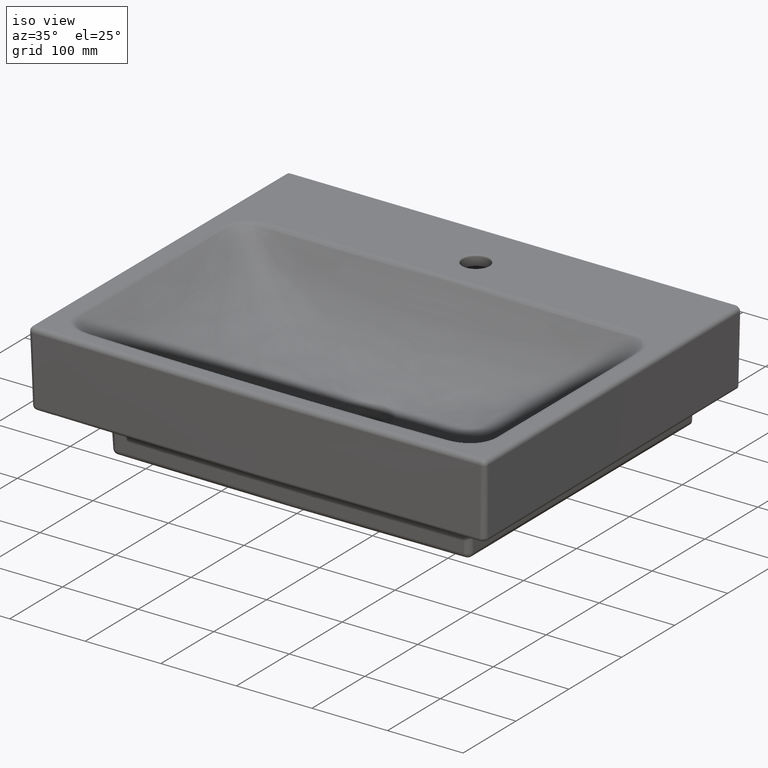
[diagram: clean part render]
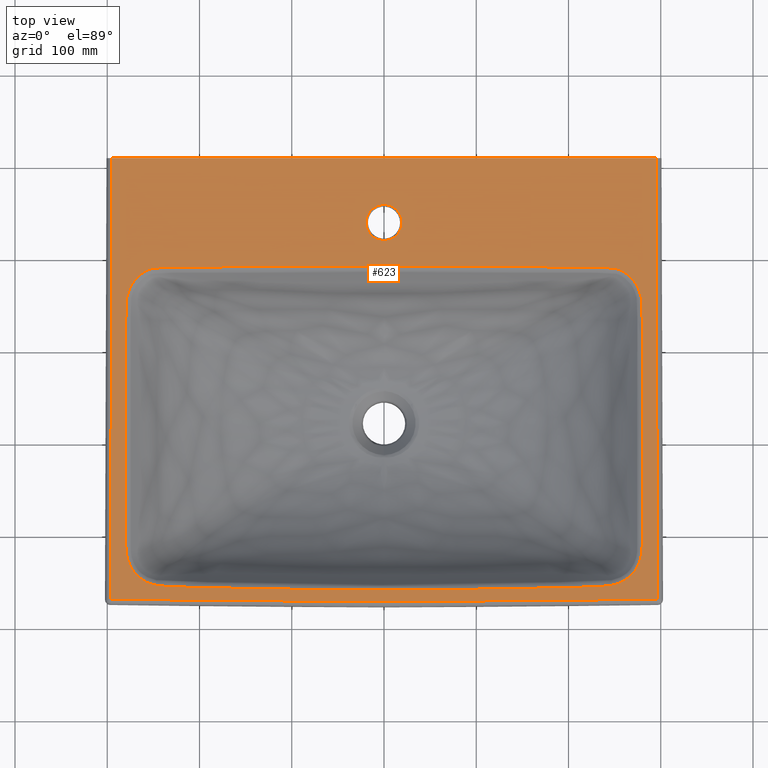
[diagram: tour spotlight — one face highlighted and labeled with its STEP entity id]
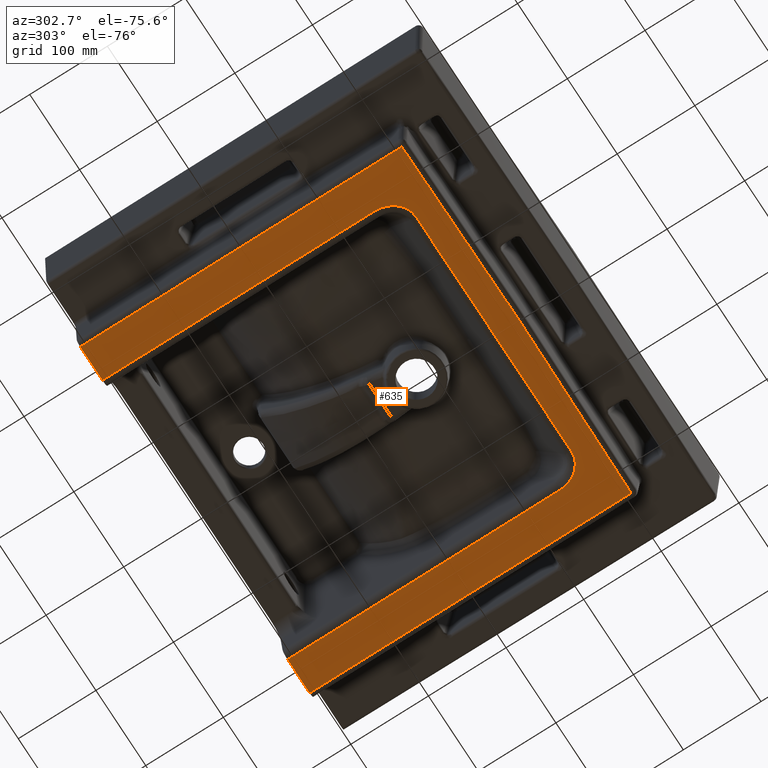
[diagram: tour spotlight — one face highlighted and labeled with its STEP entity id]
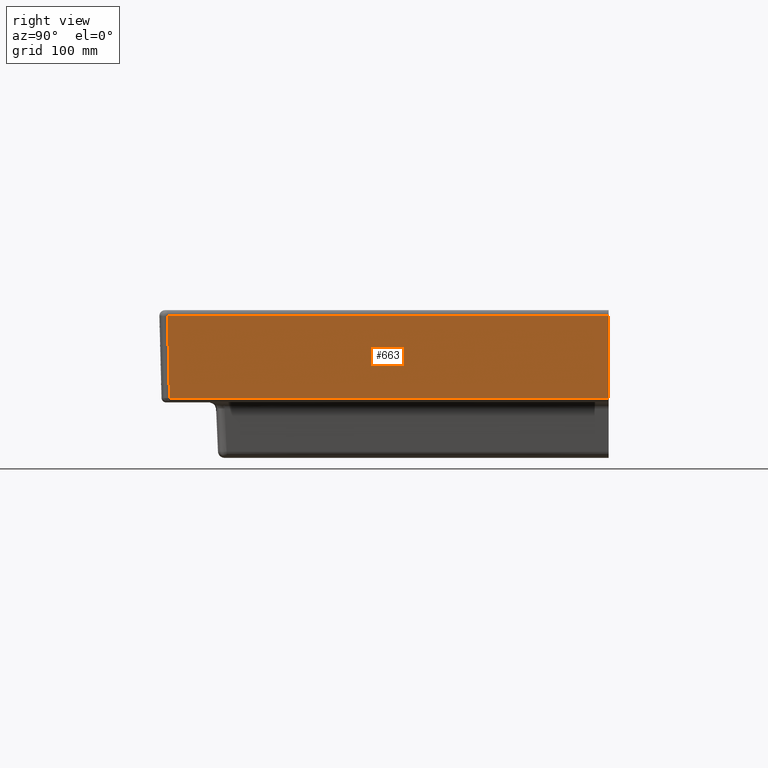
[diagram: tour spotlight — one face highlighted and labeled with its STEP entity id]
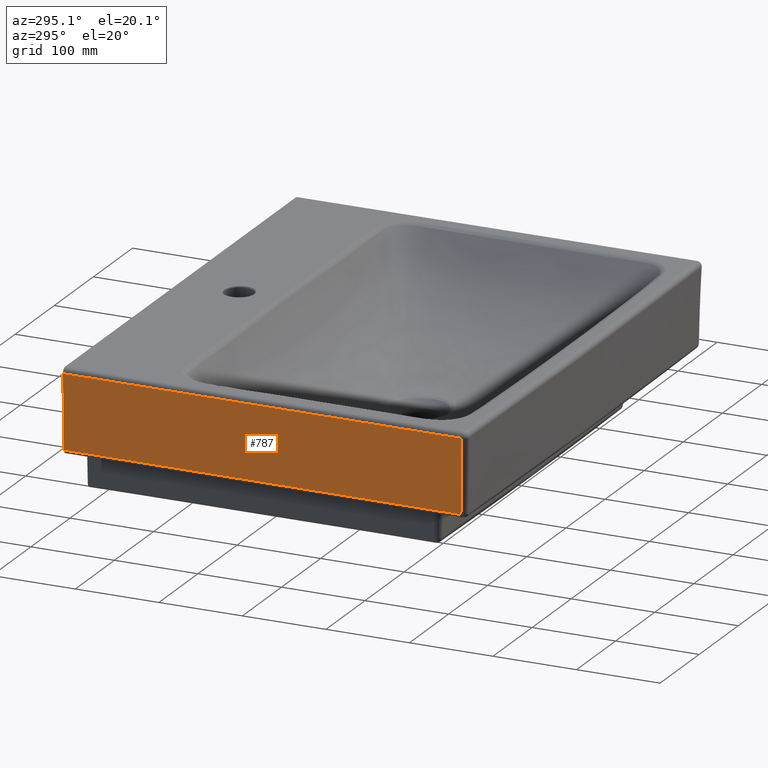
[diagram: tour spotlight — one face highlighted and labeled with its STEP entity id]
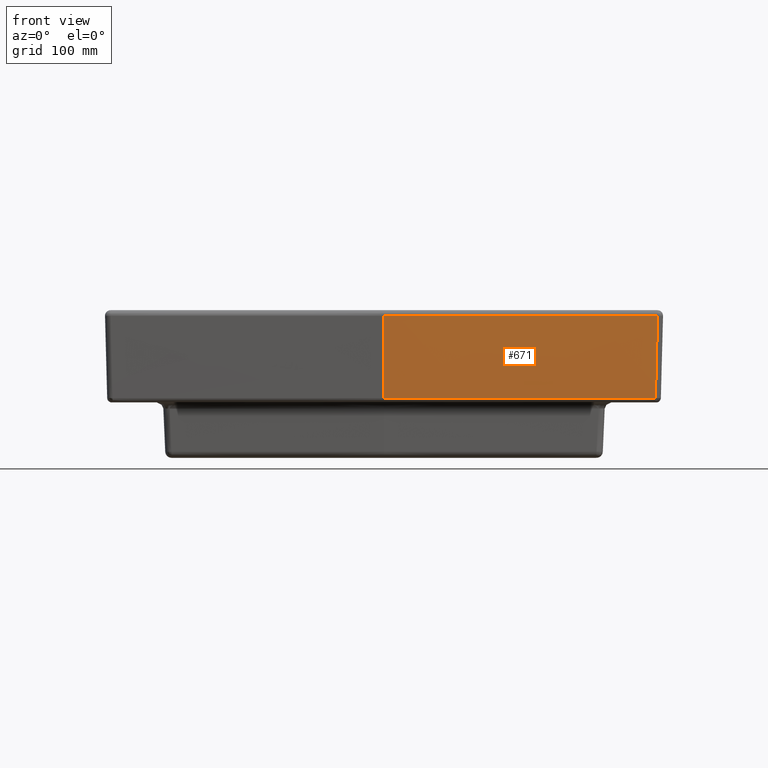
[diagram: tour spotlight — one face highlighted and labeled with its STEP entity id]
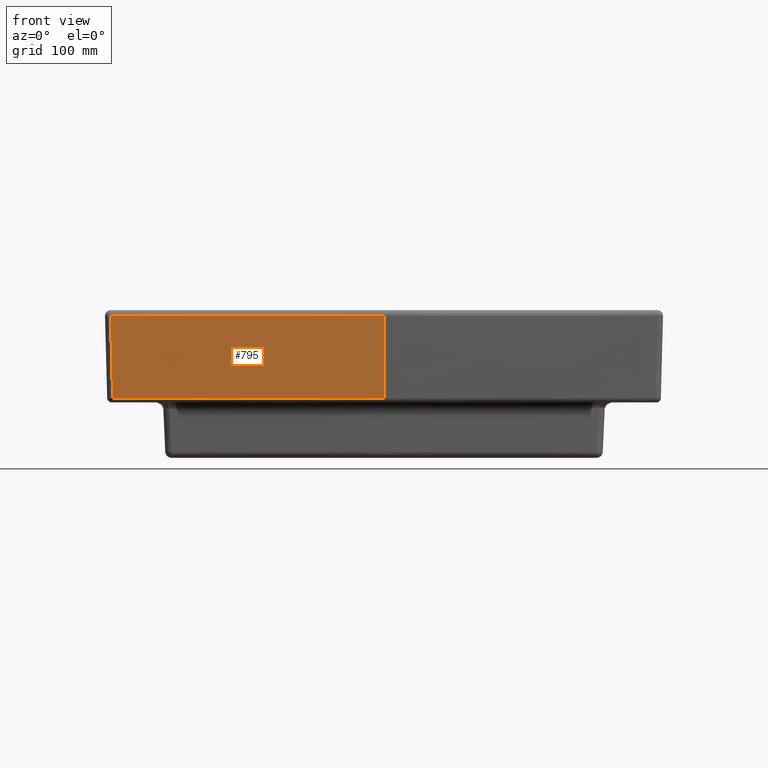
[diagram: tour spotlight — one face highlighted and labeled with its STEP entity id]
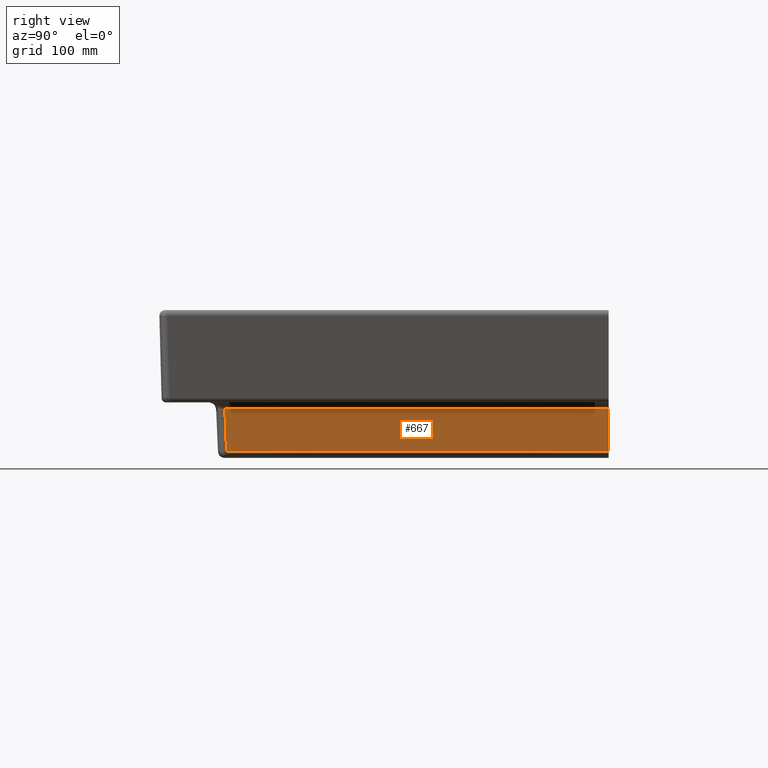
[diagram: tour spotlight — one face highlighted and labeled with its STEP entity id]
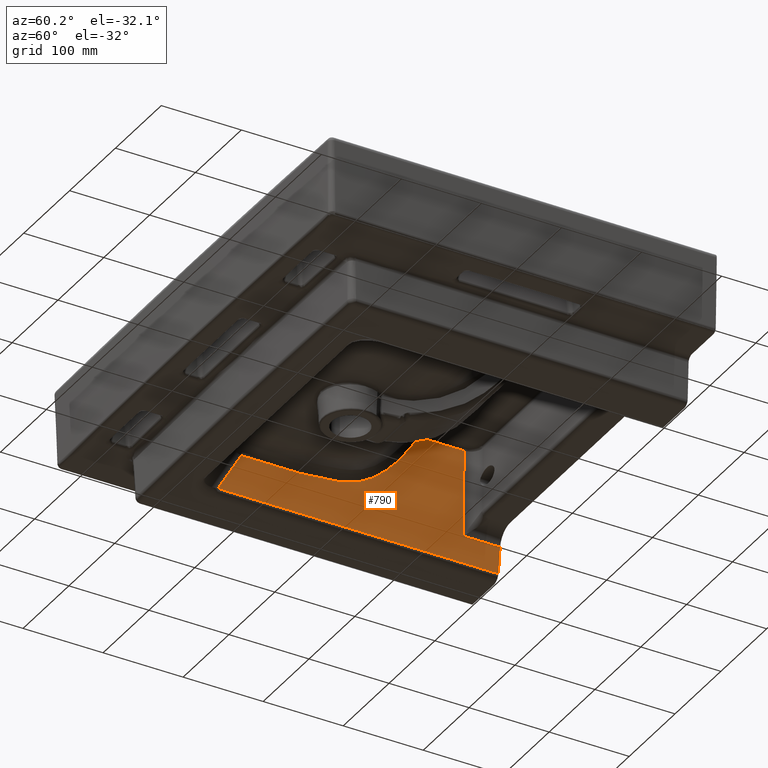
[diagram: tour spotlight — one face highlighted and labeled with its STEP entity id]
A machine part: a face-by-face anatomy tour. The part has 331 B-rep faces; the first image is the clean iso view, then the 8 largest visible faces are spotlighted one at a time (largest first), each with its STEP entity span.

Face 1 — top view, entity #623. In plain terms, the highlighted planar face has unit normal (0, 0, 1).
Definition (entity closure, byte-faithful):
#402=FACE_BOUND('',#1304,.T.);
#403=FACE_BOUND('',#1305,.T.);
#404=FACE_BOUND('',#1306,.T.);
#430=CIRCLE('',#5075,19.5000000000001);
#623=ADVANCED_FACE('',(#402,#403,#404),#954,.T.);
#954=PLANE('',#5076);
#1304=EDGE_LOOP('',(#1883));
#1305=EDGE_LOOP('',(#1884,#1885,#1886,#1887));
#1306=EDGE_LOOP('',(#1888,#1889,#1890,#1891,#1892));
#1657=LINE('',#6447,#1739);
#1658=LINE('',#6450,#1740);
#1659=LINE('',#6462,#1741);
#1739=VECTOR('',#5391,1.);
#1740=VECTOR('',#5392,1.);
#1741=VECTOR('',#5393,1.);
#1883=ORIENTED_EDGE('',*,*,#3871,.T.);
#1884=ORIENTED_EDGE('',*,*,#3872,.F.);
#1885=ORIENTED_EDGE('',*,*,#3873,.T.);
#1886=ORIENTED_EDGE('',*,*,#3874,.T.);
#1887=ORIENTED_EDGE('',*,*,#3875,.F.);
#1888=ORIENTED_EDGE('',*,*,#3876,.F.);
#1889=ORIENTED_EDGE('',*,*,#3877,.F.);
#1890=ORIENTED_EDGE('',*,*,#3878,.F.);
#1891=ORIENTED_EDGE('',*,*,#3879,.T.);
#1892=ORIENTED_EDGE('',*,*,#3880,.T.);
#3423=VERTEX_POINT('',#6306);
#3424=VERTEX_POINT('',#6371);
#3425=VERTEX_POINT('',#6372);
#3426=VERTEX_POINT('',#6437);
#3427=VERTEX_POINT('',#6442);
#3428=VERTEX_POINT('',#6448);
#3429=VERTEX_POINT('',#6449);
#3430=VERTEX_POINT('',#6451);
#3431=VERTEX_POINT('',#6456);
#3432=VERTEX_POINT('',#6461);
#3871=EDGE_CURVE('',#3423,#3423,#430,.T.);
#3872=EDGE_CURVE('',#3424,#3425,#4627,.T.);
#3873=EDGE_CURVE('',#3424,#3426,#4628,.T.);
#3874=EDGE_CURVE('',#3426,#3427,#4629,.T.);
#3875=EDGE_CURVE('',#3425,#3427,#4630,.T.);
#3876=EDGE_CURVE('',#3428,#3429,#1657,.T.);
#3877=EDGE_CURVE('',#3430,#3428,#1658,.T.);
#3878=EDGE_CURVE('',#3431,#3430,#4631,.T.);
#3879=EDGE_CURVE('',#3431,#3432,#4632,.T.);
#3880=EDGE_CURVE('',#3432,#3429,#1659,.T.);
#4627=B_SPLINE_CURVE_WITH_KNOTS('',3,(#6307,#6308,#6309,#6310,#6311,#6312,
#6313,#6314,#6315,#6316,#6317,#6318,#6319,#6320,#6321,#6322,#6323,#6324,
#6325,#6326,#6327,#6328,#6329,#6330,#6331,#6332,#6333,#6334,#6335,#6336,
#6337,#6338,#6339,#6340,#6341,#6342,#6343,#6344,#6345,#6346,#6347,#6348,
#6349,#6350,#6351,#6352,#6353,#6354,#6355,#6356,#6357,#6358,#6359,#6360,
#6361,#6362,#6363,#6364,#6365,#6366,#6367,#6368,#6369,#6370),
 .UNSPECIFIED.,.F.,.F.,(4,2,2,2,2,2,2,2,2,2,2,2,2,2,2,2,2,2,2,2,2,2,2,2,
2,2,2,2,2,2,2,4),(0.,0.125000000000001,0.187500000000002,0.250000000000002,
0.265625000000003,0.281250000000003,0.289062500000003,0.296875000000003,
0.312500000000003,0.320312500000003,0.328125000000003,0.335937500000003,
0.343750000000003,0.359375000000003,0.375000000000003,0.437500000000003,
0.500000000000003,0.562500000000003,0.625000000000004,0.640625000000004,
0.656250000000004,0.671875000000004,0.687500000000004,0.695312500000004,
0.703125000000004,0.718750000000003,0.734375000000003,0.750000000000003,
0.781250000000003,0.812500000000002,0.875000000000002,1.),.UNSPECIFIED.);
#4628=B_SPLINE_CURVE_WITH_KNOTS('',3,(#6373,#6374,#6375,#6376,#6377,#6378,
#6379,#6380,#6381,#6382,#6383,#6384,#6385,#6386,#6387,#6388,#6389,#6390,
#6391,#6392,#6393,#6394,#6395,#6396,#6397,#6398,#6399,#6400,#6401,#6402,
#6403,#6404,#6405,#6406,#6407,#6408,#6409,#6410,#6411,#6412,#6413,#6414,
#6415,#6416,#6417,#6418,#6419,#6420,#6421,#6422,#6423,#6424,#6425,#6426,
#6427,#6428,#6429,#6430,#6431,#6432,#6433,#6434,#6435,#6436),
 .UNSPECIFIED.,.F.,.F.,(4,2,2,2,2,2,2,2,2,2,2,2,2,2,2,2,2,2,2,2,2,2,2,2,
2,2,2,2,2,2,2,4),(0.,0.125000000000001,0.187500000000002,0.250000000000002,
0.265625000000003,0.281250000000003,0.289062500000003,0.296875000000003,
0.312500000000003,0.320312500000003,0.328125000000003,0.335937500000003,
0.343750000000003,0.359375000000003,0.375000000000003,0.437500000000003,
0.500000000000003,0.562500000000003,0.625000000000004,0.640625000000004,
0.656250000000004,0.671875000000004,0.687500000000004,0.695312500000004,
0.703125000000004,0.718750000000003,0.734375000000003,0.750000000000003,
0.781250000000003,0.812500000000002,0.875000000000002,1.),.UNSPECIFIED.);
#4629=B_SPLINE_CURVE_WITH_KNOTS('',3,(#6438,#6439,#6440,#6441),
 .UNSPECIFIED.,.F.,.F.,(4,4),(0.,1.),.UNSPECIFIED.);
#4630=B_SPLINE_CURVE_WITH_KNOTS('',3,(#6443,#6444,#6445,#6446),
 .UNSPECIFIED.,.F.,.F.,(4,4),(0.,1.),.UNSPECIFIED.);
#4631=B_SPLINE_CURVE_WITH_KNOTS('',3,(#6452,#6453,#6454,#6455),
 .UNSPECIFIED.,.F.,.F.,(4,4),(0.,1.),.UNSPECIFIED.);
#4632=B_SPLINE_CURVE_WITH_KNOTS('',3,(#6457,#6458,#6459,#6460),
 .UNSPECIFIED.,.F.,.F.,(4,4),(0.,1.),.UNSPECIFIED.);
#5075=AXIS2_PLACEMENT_3D('',#6305,#5389,#5390);
#5076=AXIS2_PLACEMENT_3D('',#6463,#5394,#5395);
#5389=DIRECTION('',(0.,0.,-1.));
#5390=DIRECTION('',(1.,0.,0.));
#5391=DIRECTION('',(1.,0.,0.));
#5392=DIRECTION('',(0.00349184796972981,0.999993903480294,0.));
#5393=DIRECTION('',(-0.00349184796972981,0.999993903480294,0.));
#5394=DIRECTION('',(0.,0.,1.));
#5395=DIRECTION('',(-1.,0.,0.));
#6305=CARTESIAN_POINT('',(0.,-61.6746351102872,1.45853562971996));
#6306=CARTESIAN_POINT('',(19.5000000000001,-61.6746351102872,1.45853562971996));
#6307=CARTESIAN_POINT('',(-0.000388968358782382,-109.702533947941,1.45853562971996));
#6308=CARTESIAN_POINT('',(-36.3078553618329,-109.704796748489,1.45853562971996));
#6309=CARTESIAN_POINT('',(-72.6153228582504,-109.695949583595,1.45853562971995));
#6310=CARTESIAN_POINT('',(-127.076520771903,-109.716231779906,1.45853562971995));
#6311=CARTESIAN_POINT('',(-145.230250406981,-109.727204718468,1.45853562971998));
#6312=CARTESIAN_POINT('',(-181.5377312301,-109.733687025981,1.45853562971998));
#6313=CARTESIAN_POINT('',(-199.691491837699,-109.724262019984,1.4585356297199));
#6314=CARTESIAN_POINT('',(-222.383428897326,-109.877862920388,1.4585356297199));
#6315=CARTESIAN_POINT('',(-226.921943164799,-109.913141100663,1.45853562971985));
#6316=CARTESIAN_POINT('',(-235.996946345377,-110.079595510933,1.45853562971985));
#6317=CARTESIAN_POINT('',(-240.543926849737,-110.172404529089,1.45853562972004));
#6318=CARTESIAN_POINT('',(-247.313433191955,-110.714666876094,1.45853562972004));
#6319=CARTESIAN_POINT('',(-249.562826204973,-110.951923935644,1.45853562971965));
#6320=CARTESIAN_POINT('',(-253.984471185324,-112.039553009973,1.45853562971965));
#6321=CARTESIAN_POINT('',(-256.125840367867,-112.903230144186,1.45853562972014));
#6322=CARTESIAN_POINT('',(-262.073552847064,-116.13034164714,1.45853562972014));
#6323=CARTESIAN_POINT('',(-265.570618804707,-119.172426460435,1.45853562972012));
#6324=CARTESIAN_POINT('',(-270.253490678169,-124.059188698465,1.45853562972012));
#6325=CARTESIAN_POINT('',(-271.668726322207,-125.818548291564,1.45853562971992));
#6326=CARTESIAN_POINT('',(-274.193004002278,-129.61134852202,1.45853562971992));
#6327=CARTESIAN_POINT('',(-275.278182887621,-131.648604704018,1.45853562971995));
#6328=CARTESIAN_POINT('',(-277.027943164842,-135.8180117608,1.45853562971995));
#6329=CARTESIAN_POINT('',(-277.75296994442,-137.956065927128,1.45853562972005));
#6330=CARTESIAN_POINT('',(-278.876476436251,-142.348431209049,1.45853562972005));
#6331=CARTESIAN_POINT('',(-279.259064741498,-144.618734328623,1.45853562971992));
#6332=CARTESIAN_POINT('',(-280.039679140449,-151.394677199004,1.45853562971992));
#6333=CARTESIAN_POINT('',(-280.022394338867,-155.921595079093,1.45853562971988));
#6334=CARTESIAN_POINT('',(-280.041719056438,-164.974466341078,1.45853562971988));
#6335=CARTESIAN_POINT('',(-280.036402090276,-169.50117004358,1.45853562971999));
#6336=CARTESIAN_POINT('',(-280.004407900014,-192.134785362526,1.45853562971999));
#6337=CARTESIAN_POINT('',(-279.951599516916,-210.241720640788,1.45853562971999));
#6338=CARTESIAN_POINT('',(-279.957860192448,-246.455657184579,1.45853562971999));
#6339=CARTESIAN_POINT('',(-279.986925795949,-264.562638012055,1.45853562971996));
#6340=CARTESIAN_POINT('',(-279.989700570142,-300.776599527094,1.45853562971996));
#6341=CARTESIAN_POINT('',(-279.963433801929,-318.883594429193,1.45853562971996));
#6342=CARTESIAN_POINT('',(-279.967387208879,-355.097547920378,1.45853562971996));
#6343=CARTESIAN_POINT('',(-280.018315327997,-373.204490416467,1.45853562972001));
#6344=CARTESIAN_POINT('',(-280.06403859826,-395.838181086352,1.45853562972001));
#6345=CARTESIAN_POINT('',(-280.070576378629,-400.364921044263,1.45853562972002));
#6346=CARTESIAN_POINT('',(-280.053386857303,-409.418422135448,1.45853562972002));
#6347=CARTESIAN_POINT('',(-280.091376962108,-413.948937236694,1.4585356297199));
#6348=CARTESIAN_POINT('',(-279.122992806463,-422.93483915536,1.4585356297199));
#6349=CARTESIAN_POINT('',(-278.093649088724,-427.403345377604,1.45853562971995));
#6350=CARTESIAN_POINT('',(-274.713163545821,-435.743829193761,1.45853562971995));
#6351=CARTESIAN_POINT('',(-272.217293594165,-439.648648426427,1.45853562971995));
#6352=CARTESIAN_POINT('',(-267.674588112275,-444.63766241798,1.45853562971995));
#6353=CARTESIAN_POINT('',(-265.974774081998,-446.156642607617,1.45853562972013));
#6354=CARTESIAN_POINT('',(-262.32024852652,-448.893106410254,1.45853562972013));
#6355=CARTESIAN_POINT('',(-260.412556575291,-450.116851947835,1.45853562971983));
#6356=CARTESIAN_POINT('',(-254.364343166,-453.203997725323,1.45853562971983));
#6357=CARTESIAN_POINT('',(-249.951124871391,-454.597443975197,1.45853562972099));
#6358=CARTESIAN_POINT('',(-241.076982662178,-456.21050859321,1.45853562972099));
#6359=CARTESIAN_POINT('',(-236.530047986411,-456.448152349406,1.45853562972002));
#6360=CARTESIAN_POINT('',(-227.436288458243,-456.755610108941,1.45853562972002));
#6361=CARTESIAN_POINT('',(-222.888696381988,-456.882688369733,1.4585356297197));
#6362=CARTESIAN_POINT('',(-209.245465423859,-457.246909798114,1.4585356297197));
#6363=CARTESIAN_POINT('',(-200.147791482458,-457.404606871681,1.45853562972007));
#6364=CARTESIAN_POINT('',(-181.956216034119,-457.878465622215,1.45853562972007));
#6365=CARTESIAN_POINT('',(-172.860005655668,-458.086919373518,1.45853562971993));
#6366=CARTESIAN_POINT('',(-145.570340983299,-458.642647802861,1.45853562971993));
#6367=CARTESIAN_POINT('',(-127.376512353702,-458.964702241809,1.45853562971997));
#6368=CARTESIAN_POINT('',(-72.7919031558472,-459.720437844282,1.45853562971997));
#6369=CARTESIAN_POINT('',(-36.3967016828527,-459.894179462964,1.45853562971996));
#6370=CARTESIAN_POINT('',(-0.00145523602242378,-459.903211743634,1.45853562971996));
#6371=CARTESIAN_POINT('',(0.,-109.702533899456,1.45853562971997));
#6372=CARTESIAN_POINT('',(-0.00145523584317107,-459.903212465932,1.45853562971996));
#6373=CARTESIAN_POINT('',(0.000388968358782382,-109.702533947941,1.45853562971996));
#6374=CARTESIAN_POINT('',(36.3078553618329,-109.704796748489,1.45853562971996));
#6375=CARTESIAN_POINT('',(72.6153228582504,-109.695949583595,1.45853562971995));
#6376=CARTESIAN_POINT('',(127.076520771903,-109.716231779906,1.45853562971995));
#6377=CARTESIAN_POINT('',(145.230250406981,-109.727204718468,1.45853562971998));
#6378=CARTESIAN_POINT('',(181.5377312301,-109.733687025981,1.45853562971998));
#6379=CARTESIAN_POINT('',(199.691491837699,-109.724262019984,1.4585356297199));
#6380=CARTESIAN_POINT('',(222.383428897326,-109.877862920388,1.4585356297199));
#6381=CARTESIAN_POINT('',(226.921943164799,-109.913141100663,1.45853562971985));
#6382=CARTESIAN_POINT('',(235.996946345377,-110.079595510933,1.45853562971985));
#6383=CARTESIAN_POINT('',(240.543926849737,-110.172404529089,1.45853562972004));
#6384=CARTESIAN_POINT('',(247.313433191955,-110.714666876094,1.45853562972004));
#6385=CARTESIAN_POINT('',(249.562826204973,-110.951923935644,1.45853562971965));
#6386=CARTESIAN_POINT('',(253.984471185324,-112.039553009973,1.45853562971965));
#6387=CARTESIAN_POINT('',(256.125840367867,-112.903230144186,1.45853562972014));
#6388=CARTESIAN_POINT('',(262.073552847064,-116.13034164714,1.45853562972014));
#6389=CARTESIAN_POINT('',(265.570618804707,-119.172426460435,1.45853562972012));
#6390=CARTESIAN_POINT('',(270.253490678169,-124.059188698465,1.45853562972012));
#6391=CARTESIAN_POINT('',(271.668726322207,-125.818548291564,1.45853562971992));
#6392=CARTESIAN_POINT('',(274.193004002278,-129.61134852202,1.45853562971992));
#6393=CARTESIAN_POINT('',(275.278182887621,-131.648604704018,1.45853562971995));
#6394=CARTESIAN_POINT('',(277.027943164842,-135.8180117608,1.45853562971995));
#6395=CARTESIAN_POINT('',(277.75296994442,-137.956065927128,1.45853562972005));
#6396=CARTESIAN_POINT('',(278.876476436251,-142.348431209049,1.45853562972005));
#6397=CARTESIAN_POINT('',(279.259064741498,-144.618734328623,1.45853562971992));
#6398=CARTESIAN_POINT('',(280.039679140449,-151.394677199004,1.45853562971992));
#6399=CARTESIAN_POINT('',(280.022394338867,-155.921595079093,1.45853562971988));
#6400=CARTESIAN_POINT('',(280.041719056438,-164.974466341078,1.45853562971988));
#6401=CARTESIAN_POINT('',(280.036402090276,-169.50117004358,1.45853562971999));
#6402=CARTESIAN_POINT('',(280.004407900014,-192.134785362526,1.45853562971999));
#6403=CARTESIAN_POINT('',(279.951599516916,-210.241720640788,1.45853562971999));
#6404=CARTESIAN_POINT('',(279.957860192448,-246.455657184579,1.45853562971999));
#6405=CARTESIAN_POINT('',(279.986925795949,-264.562638012055,1.45853562971996));
#6406=CARTESIAN_POINT('',(279.989700570142,-300.776599527094,1.45853562971996));
#6407=CARTESIAN_POINT('',(279.963433801929,-318.883594429193,1.45853562971996));
#6408=CARTESIAN_POINT('',(279.967387208879,-355.097547920378,1.45853562971996));
#6409=CARTESIAN_POINT('',(280.018315327997,-373.204490416467,1.45853562972001));
#6410=CARTESIAN_POINT('',(280.06403859826,-395.838181086352,1.45853562972001));
#6411=CARTESIAN_POINT('',(280.070576378629,-400.364921044263,1.45853562972002));
#6412=CARTESIAN_POINT('',(280.053386857303,-409.418422135448,1.45853562972002));
#6413=CARTESIAN_POINT('',(280.091376962108,-413.948937236694,1.4585356297199));
#6414=CARTESIAN_POINT('',(279.122992806463,-422.93483915536,1.4585356297199));
#6415=CARTESIAN_POINT('',(278.093649088724,-427.403345377604,1.45853562971995));
#6416=CARTESIAN_POINT('',(274.713163545821,-435.743829193761,1.45853562971995));
#6417=CARTESIAN_POINT('',(272.217293594165,-439.648648426427,1.45853562971995));
#6418=CARTESIAN_POINT('',(267.674588112275,-444.63766241798,1.45853562971995));
#6419=CARTESIAN_POINT('',(265.974774081998,-446.156642607617,1.45853562972013));
#6420=CARTESIAN_POINT('',(262.32024852652,-448.893106410254,1.45853562972013));
#6421=CARTESIAN_POINT('',(260.412556575291,-450.116851947835,1.45853562971983));
#6422=CARTESIAN_POINT('',(254.364343166,-453.203997725323,1.45853562971983));
#6423=CARTESIAN_POINT('',(249.951124871391,-454.597443975197,1.45853562972099));
#6424=CARTESIAN_POINT('',(241.076982662178,-456.21050859321,1.45853562972099));
#6425=CARTESIAN_POINT('',(236.530047986411,-456.448152349406,1.45853562972002));
#6426=CARTESIAN_POINT('',(227.436288458243,-456.755610108941,1.45853562972002));
#6427=CARTESIAN_POINT('',(222.888696381988,-456.882688369733,1.4585356297197));
#6428=CARTESIAN_POINT('',(209.245465423859,-457.246909798114,1.4585356297197));
#6429=CARTESIAN_POINT('',(200.147791482458,-457.404606871681,1.45853562972007));
#6430=CARTESIAN_POINT('',(181.956216034119,-457.878465622215,1.45853562972007));
#6431=CARTESIAN_POINT('',(172.860005655668,-458.086919373518,1.45853562971993));
#6432=CARTESIAN_POINT('',(145.570340983299,-458.642647802861,1.45853562971993));
#6433=CARTESIAN_POINT('',(127.376512353702,-458.964702241809,1.45853562971997));
#6434=CARTESIAN_POINT('',(72.7919031558472,-459.720437844282,1.45853562971997));
#6435=CARTESIAN_POINT('',(36.3967016828527,-459.894179462964,1.45853562971996));
#6436=CARTESIAN_POINT('',(0.00145523602242378,-459.903211743634,1.45853562971996));
#6437=CARTESIAN_POINT('',(0.00145523584317107,-459.903212465932,1.45853562971996));
#6438=CARTESIAN_POINT('',(0.00145523584317107,-459.903212465932,1.45853562971996));
#6439=CARTESIAN_POINT('',(0.000970157228771128,-459.903212345549,1.45853562971996));
#6440=CARTESIAN_POINT('',(0.000485078614316701,-459.903212225166,1.45853562971995));
#6441=CARTESIAN_POINT('',(-8.31832941015822E-014,-459.903212104783,1.45853562971995));
#6442=CARTESIAN_POINT('',(0.,-459.903212104783,1.45853562971996));
#6443=CARTESIAN_POINT('',(-0.00145523584317107,-459.903212465932,1.45853562971996));
#6444=CARTESIAN_POINT('',(-0.000970157228771128,-459.903212345549,1.45853562971996));
#6445=CARTESIAN_POINT('',(-0.000485078614316701,-459.903212225166,1.45853562971995));
#6446=CARTESIAN_POINT('',(8.31832941015822E-014,-459.903212104783,1.45853562971995));
#6447=CARTESIAN_POINT('',(-240.000000000001,8.17072485359748,1.45853562971997));
#6448=CARTESIAN_POINT('',(-294.799315536312,8.17072485359748,1.45853562971997));
#6449=CARTESIAN_POINT('',(294.799315536312,8.17072485359748,1.45853562971997));
#6450=CARTESIAN_POINT('',(-297.13085030202,-659.533187708236,1.45853562971996));
#6451=CARTESIAN_POINT('',(-296.469847334429,-470.235445222304,1.45853562971996));
#6452=CARTESIAN_POINT('',(-0.000139882988752233,-472.862885701117,1.45853562971996));
#6453=CARTESIAN_POINT('',(-98.831117405338,-472.860614766062,1.45853562971996));
#6454=CARTESIAN_POINT('',(-197.654349976072,-471.984434961117,1.45853562971996));
#6455=CARTESIAN_POINT('',(-296.469847334429,-470.235445222304,1.45853562971996));
#6456=CARTESIAN_POINT('',(0.,-472.862885702724,1.45853562971996));
#6457=CARTESIAN_POINT('',(0.000139882988752233,-472.862885701117,1.45853562971996));
#6458=CARTESIAN_POINT('',(98.831117405338,-472.860614766062,1.45853562971996));
#6459=CARTESIAN_POINT('',(197.654349976072,-471.984434961117,1.45853562971996));
#6460=CARTESIAN_POINT('',(296.469847334429,-470.235445222304,1.45853562971996));
#6461=CARTESIAN_POINT('',(296.469847334429,-470.235445222304,1.45853562971996));
#6462=CARTESIAN_POINT('',(297.13085030202,-659.533187708236,1.45853562971996));
#6463=CARTESIAN_POINT('',(498.71702373142,-658.829275146404,1.45853562971996));

Face 2 — auxiliary view, entity #635. In plain terms, the highlighted planar face has unit normal (0, 0, 1).
Definition (entity closure, byte-faithful):
#635=ADVANCED_FACE('',(#992),#964,.F.);
#964=PLANE('',#5112);
#992=FACE_OUTER_BOUND('',#1324,.T.);
#1324=EDGE_LOOP('',(#1986,#1987,#1988,#1989,#1990,#1991,#1992,#1993,#1994,
#1995,#1996));
#1681=LINE('',#6917,#1763);
#1686=LINE('',#6962,#1768);
#1688=LINE('',#7107,#1770);
#1689=LINE('',#7112,#1771);
#1690=LINE('',#7156,#1772);
#1763=VECTOR('',#5461,1.);
#1768=VECTOR('',#5482,1.);
#1770=VECTOR('',#5490,1.);
#1771=VECTOR('',#5493,1.);
#1772=VECTOR('',#5494,1.);
#1823=ELLIPSE('',#5110,36.8033265228157,32.);
#1824=ELLIPSE('',#5111,36.8033265228157,32.);
#1986=ORIENTED_EDGE('',*,*,#3969,.T.);
#1987=ORIENTED_EDGE('',*,*,#3970,.T.);
#1988=ORIENTED_EDGE('',*,*,#3971,.T.);
#1989=ORIENTED_EDGE('',*,*,#3964,.T.);
#1990=ORIENTED_EDGE('',*,*,#3972,.T.);
#1991=ORIENTED_EDGE('',*,*,#3973,.T.);
#1992=ORIENTED_EDGE('',*,*,#3974,.F.);
#1993=ORIENTED_EDGE('',*,*,#3975,.F.);
#1994=ORIENTED_EDGE('',*,*,#3949,.F.);
#1995=ORIENTED_EDGE('',*,*,#3976,.F.);
#1996=ORIENTED_EDGE('',*,*,#3977,.F.);
#3500=VERTEX_POINT('',#6916);
#3501=VERTEX_POINT('',#6918);
#3512=VERTEX_POINT('',#6961);
#3513=VERTEX_POINT('',#6963);
#3517=VERTEX_POINT('',#7108);
#3518=VERTEX_POINT('',#7109);
#3519=VERTEX_POINT('',#7111);
#3520=VERTEX_POINT('',#7129);
#3521=VERTEX_POINT('',#7134);
#3522=VERTEX_POINT('',#7139);
#3523=VERTEX_POINT('',#7157);
#3949=EDGE_CURVE('',#3500,#3501,#1681,.T.);
#3964=EDGE_CURVE('',#3513,#3512,#1686,.T.);
#3969=EDGE_CURVE('',#3517,#3518,#1688,.T.);
#3970=EDGE_CURVE('',#3518,#3519,#1823,.T.);
#3971=EDGE_CURVE('',#3519,#3513,#1689,.T.);
#3972=EDGE_CURVE('',#3512,#3520,#4671,.T.);
#3973=EDGE_CURVE('',#3520,#3521,#4672,.T.);
#3974=EDGE_CURVE('',#3522,#3521,#4673,.T.);
#3975=EDGE_CURVE('',#3501,#3522,#4674,.T.);
#3976=EDGE_CURVE('',#3523,#3500,#1690,.T.);
#3977=EDGE_CURVE('',#3517,#3523,#1824,.T.);
#4671=B_SPLINE_CURVE_WITH_KNOTS('',3,(#7113,#7114,#7115,#7116,#7117,#7118,
#7119,#7120,#7121,#7122,#7123,#7124,#7125,#7126,#7127,#7128),
 .UNSPECIFIED.,.F.,.F.,(4,3,3,3,3,4),(0.,0.033803274557704,0.16901637278852,
0.709868765711785,0.834641136093124,1.),.UNSPECIFIED.);
#4672=B_SPLINE_CURVE_WITH_KNOTS('',3,(#7130,#7131,#7132,#7133),
 .UNSPECIFIED.,.F.,.F.,(4,4),(0.,1.),.UNSPECIFIED.);
#4673=B_SPLINE_CURVE_WITH_KNOTS('',3,(#7135,#7136,#7137,#7138),
 .UNSPECIFIED.,.F.,.F.,(4,4),(0.,1.),.UNSPECIFIED.);
#4674=B_SPLINE_CURVE_WITH_KNOTS('',3,(#7140,#7141,#7142,#7143,#7144,#7145,
#7146,#7147,#7148,#7149,#7150,#7151,#7152,#7153,#7154,#7155),
 .UNSPECIFIED.,.F.,.F.,(4,3,3,3,3,4),(0.,0.033803274557704,0.16901637278852,
0.709868765711785,0.834641136093124,1.),.UNSPECIFIED.);
#5110=AXIS2_PLACEMENT_3D('',#7110,#5491,#5492);
#5111=AXIS2_PLACEMENT_3D('',#7158,#5495,#5496);
#5112=AXIS2_PLACEMENT_3D('',#7159,#5497,#5498);
#5461=DIRECTION('',(-1.,0.,0.));
#5482=DIRECTION('',(1.,0.,0.));
#5490=DIRECTION('',(1.,0.,0.));
#5491=DIRECTION('',(0.,3.46944695195362E-018,1.));
#5492=DIRECTION('',(0.216131449726123,-0.976364274458711,3.38744405601718E-018));
#5493=DIRECTION('',(4.25994520571545E-019,1.,-3.46944695195361E-018));
#5494=DIRECTION('',(-4.25994520571545E-019,1.,-3.46944695195361E-018));
#5495=DIRECTION('',(0.,-3.46944695195362E-018,-1.));
#5496=DIRECTION('',(-0.216131449726123,-0.976364274458711,3.38744405601718E-018));
#5497=DIRECTION('',(0.,3.46944695195361E-018,1.));
#5498=DIRECTION('',(1.,0.,0.));
#6916=CARTESIAN_POINT('',(-185.712881277129,8.17072485359749,-158.590255338046));
#6917=CARTESIAN_POINT('',(189.694186899248,8.17072485359749,-158.590255338046));
#6918=CARTESIAN_POINT('',(-230.213129961228,8.17072485359749,-158.590255338046));
#6961=CARTESIAN_POINT('',(230.213129961228,8.17072485359749,-158.590255338046));
#6962=CARTESIAN_POINT('',(-189.694186899248,8.17072485359749,-158.590255338046));
#6963=CARTESIAN_POINT('',(185.712881277129,8.17072485359749,-158.590255338046));
#7107=CARTESIAN_POINT('',(-189.694186899248,-376.822149583699,-158.590255338046));
#7108=CARTESIAN_POINT('',(-155.378393916063,-376.822149583699,-158.590255338046));
#7109=CARTESIAN_POINT('',(155.378393916063,-376.822149583699,-158.590255338046));
#7110=CARTESIAN_POINT('',(153.472566862446,-340.22915886707,-158.590255338046));
#7111=CARTESIAN_POINT('',(185.71288127713,-342.392286396891,-158.590255338046));
#7112=CARTESIAN_POINT('',(185.712881277129,8.17072485359749,-158.590255338046));
#7113=CARTESIAN_POINT('',(230.213129961228,8.17072485359749,-158.590255338046));
#7114=CARTESIAN_POINT('',(230.213129961228,3.50405818693082,-158.590255338046));
#7115=CARTESIAN_POINT('',(230.213129961228,-1.16260847973585,-158.590255338046));
#7116=CARTESIAN_POINT('',(230.213129961228,-5.82927514640251,-158.590255338046));
#7117=CARTESIAN_POINT('',(230.213129961228,-24.4959418130692,-158.590255338046));
#7118=CARTESIAN_POINT('',(230.213129961228,-43.1626084797358,-158.590255338046));
#7119=CARTESIAN_POINT('',(230.213129961228,-61.8292751464025,-158.590255338046));
#7120=CARTESIAN_POINT('',(230.213129961228,-136.495941813069,-158.590255338046));
#7121=CARTESIAN_POINT('',(230.213129961228,-211.162608479736,-158.590255338046));
#7122=CARTESIAN_POINT('',(230.213129961228,-285.829275146402,-158.590255338046));
#7123=CARTESIAN_POINT('',(230.213129961228,-303.05456084426,-158.590255338046));
#7124=CARTESIAN_POINT('',(230.213129961228,-320.279846542118,-158.590255338046));
#7125=CARTESIAN_POINT('',(230.213129961228,-337.505132239976,-158.590255338046));
#7126=CARTESIAN_POINT('',(230.213129961228,-360.333532988986,-158.590255338046));
#7127=CARTESIAN_POINT('',(230.213129961228,-383.161933737996,-158.590255338046));
#7128=CARTESIAN_POINT('',(230.213129961228,-405.990334487007,-158.590255338046));
#7129=CARTESIAN_POINT('',(230.213129961228,-405.990334487007,-158.590255338046));
#7130=CARTESIAN_POINT('',(230.213129961228,-405.990334487007,-158.590255338046));
#7131=CARTESIAN_POINT('',(153.483008129376,-407.521835071009,-158.590255338046));
#7132=CARTESIAN_POINT('',(76.7413568564697,-408.311293112591,-158.590255338046));
#7133=CARTESIAN_POINT('',(-0.00403381685265493,-408.358251124043,-158.590255338046));
#7134=CARTESIAN_POINT('',(0.,-408.358246184987,-158.590255338046));
#7135=CARTESIAN_POINT('',(-230.213129961228,-405.990334487007,-158.590255338046));
#7136=CARTESIAN_POINT('',(-153.483008129376,-407.521835071009,-158.590255338046));
#7137=CARTESIAN_POINT('',(-76.7413568564697,-408.311293112591,-158.590255338046));
#7138=CARTESIAN_POINT('',(0.00403381685265493,-408.358251124043,-158.590255338046));
#7139=CARTESIAN_POINT('',(-230.213129961228,-405.990334487007,-158.590255338046));
#7140=CARTESIAN_POINT('',(-230.213129961228,8.17072485359749,-158.590255338046));
#7141=CARTESIAN_POINT('',(-230.213129961228,3.50405818693082,-158.590255338046));
#7142=CARTESIAN_POINT('',(-230.213129961228,-1.16260847973585,-158.590255338046));
#7143=CARTESIAN_POINT('',(-230.213129961228,-5.82927514640251,-158.590255338046));
#7144=CARTESIAN_POINT('',(-230.213129961228,-24.4959418130692,-158.590255338046));
#7145=CARTESIAN_POINT('',(-230.213129961228,-43.1626084797358,-158.590255338046));
#7146=CARTESIAN_POINT('',(-230.213129961228,-61.8292751464025,-158.590255338046));
#7147=CARTESIAN_POINT('',(-230.213129961228,-136.495941813069,-158.590255338046));
#7148=CARTESIAN_POINT('',(-230.213129961228,-211.162608479736,-158.590255338046));
#7149=CARTESIAN_POINT('',(-230.213129961228,-285.829275146402,-158.590255338046));
#7150=CARTESIAN_POINT('',(-230.213129961228,-303.05456084426,-158.590255338046));
#7151=CARTESIAN_POINT('',(-230.213129961228,-320.279846542118,-158.590255338046));
#7152=CARTESIAN_POINT('',(-230.213129961228,-337.505132239976,-158.590255338046));
#7153=CARTESIAN_POINT('',(-230.213129961228,-360.333532988986,-158.590255338046));
#7154=CARTESIAN_POINT('',(-230.213129961228,-383.161933737996,-158.590255338046));
#7155=CARTESIAN_POINT('',(-230.213129961228,-405.990334487007,-158.590255338046));
#7156=CARTESIAN_POINT('',(-185.712881277129,8.17072485359749,-158.590255338046));
#7157=CARTESIAN_POINT('',(-185.71288127713,-342.392286396891,-158.590255338046));
#7158=CARTESIAN_POINT('',(-153.472566862446,-340.22915886707,-158.590255338046));
#7159=CARTESIAN_POINT('',(-189.694186899248,-424.694974545652,-158.590255338046));

Face 3 — right view, entity #663. In plain terms, the highlighted planar face has unit normal (0.9997, 0.0035, -0.0262).
Definition (entity closure, byte-faithful):
#663=ADVANCED_FACE('',(#1015),#967,.T.);
#967=PLANE('',#5145);
#1015=FACE_OUTER_BOUND('',#1357,.T.);
#1357=EDGE_LOOP('',(#2116,#2117,#2118,#2119));
#1684=LINE('',#6942,#1766);
#1695=LINE('',#8075,#1777);
#1696=LINE('',#8076,#1778);
#1766=VECTOR('',#5474,1.);
#1777=VECTOR('',#5567,1.);
#1778=VECTOR('',#5568,1.);
#2116=ORIENTED_EDGE('',*,*,#4064,.T.);
#2117=ORIENTED_EDGE('',*,*,#4065,.T.);
#2118=ORIENTED_EDGE('',*,*,#3958,.F.);
#2119=ORIENTED_EDGE('',*,*,#4066,.T.);
#3507=VERTEX_POINT('',#6941);
#3508=VERTEX_POINT('',#6943);
#3586=VERTEX_POINT('',#8073);
#3587=VERTEX_POINT('',#8074);
#3958=EDGE_CURVE('',#3507,#3508,#1684,.T.);
#4064=EDGE_CURVE('',#3586,#3587,#4738,.T.);
#4065=EDGE_CURVE('',#3587,#3508,#1695,.T.);
#4066=EDGE_CURVE('',#3507,#3586,#1696,.T.);
#4738=B_SPLINE_CURVE_WITH_KNOTS('',3,(#8066,#8067,#8068,#8069,#8070,#8071,
#8072),.UNSPECIFIED.,.F.,.F.,(4,3,4),(0.,0.491629981975571,1.),
 .UNSPECIFIED.);
#5145=AXIS2_PLACEMENT_3D('',#8077,#5569,#5570);
#5474=DIRECTION('',(-0.0261769483075656,-3.46825805913458E-018,-0.999657324975565));
#5567=DIRECTION('',(-0.00349184796972981,0.999993903480294,1.35478799189616E-020));
#5568=DIRECTION('',(0.00349184796972981,-0.999993903480294,-1.35571632573147E-020));
#5569=DIRECTION('',(0.999651234721049,0.00349065141522373,-0.0261767888286386));
#5570=DIRECTION('',(-0.0261769483075656,0.,-0.999657324975565));
#6941=CARTESIAN_POINT('',(300.797296078029,8.17072485359748,-4.69852510325186));
#6942=CARTESIAN_POINT('',(297.930515418766,8.17072485359748,-114.176461624308));
#6943=CARTESIAN_POINT('',(298.467156092856,8.17072485359748,-93.6829810844462));
#8066=CARTESIAN_POINT('',(302.467754742755,-470.214501313812,-4.69852510325188));
#8067=CARTESIAN_POINT('',(302.084589248355,-469.839367752977,-19.2810012649875));
#8068=CARTESIAN_POINT('',(301.70142371827,-469.464221521495,-33.8634770998391));
#8069=CARTESIAN_POINT('',(301.318258152495,-469.089062617006,-48.4459526077129));
#8070=CARTESIAN_POINT('',(300.922045771801,-468.701129524986,-63.5249624496043));
#8071=CARTESIAN_POINT('',(300.525833352942,-468.313182882231,-78.6039719418833));
#8072=CARTESIAN_POINT('',(300.129620895917,-467.925222686128,-93.6829810844462));
#8073=CARTESIAN_POINT('',(302.467754742755,-470.214501313812,-4.69852510325188));
#8074=CARTESIAN_POINT('',(300.129620895917,-467.925222686128,-93.6829810844462));
#8075=CARTESIAN_POINT('',(298.46715453822,8.17117006949972,-93.6829810844462));
#8076=CARTESIAN_POINT('',(302.57516146539,-500.973591846933,-4.69852510325187));
#8077=CARTESIAN_POINT('',(301.522052001202,-500.977269167497,-44.9156433796161));

Face 4 — auxiliary view, entity #787. In plain terms, the highlighted planar face has unit normal (-0.9997, 0.0035, -0.0262).
Definition (entity closure, byte-faithful):
#787=ADVANCED_FACE('',(#1139),#976,.T.);
#976=PLANE('',#5227);
#1139=FACE_OUTER_BOUND('',#1481,.T.);
#1481=EDGE_LOOP('',(#2671,#2672,#2673,#2674));
#1683=LINE('',#6937,#1765);
#1714=LINE('',#17141,#1796);
#1715=LINE('',#17142,#1797);
#1765=VECTOR('',#5469,1.);
#1796=VECTOR('',#5750,1.);
#1797=VECTOR('',#5751,1.);
#2671=ORIENTED_EDGE('',*,*,#4334,.F.);
#2672=ORIENTED_EDGE('',*,*,#4335,.F.);
#2673=ORIENTED_EDGE('',*,*,#3955,.T.);
#2674=ORIENTED_EDGE('',*,*,#4336,.F.);
#3505=VERTEX_POINT('',#6936);
#3506=VERTEX_POINT('',#6938);
#3726=VERTEX_POINT('',#17139);
#3727=VERTEX_POINT('',#17140);
#3955=EDGE_CURVE('',#3506,#3505,#1683,.T.);
#4334=EDGE_CURVE('',#3726,#3727,#4928,.T.);
#4335=EDGE_CURVE('',#3506,#3726,#1714,.T.);
#4336=EDGE_CURVE('',#3727,#3505,#1715,.T.);
#4928=B_SPLINE_CURVE_WITH_KNOTS('',3,(#17132,#17133,#17134,#17135,#17136,
#17137,#17138),.UNSPECIFIED.,.F.,.F.,(4,3,4),(0.,0.491629981975571,1.),
 .UNSPECIFIED.);
#5227=AXIS2_PLACEMENT_3D('',#17143,#5752,#5753);
#5469=DIRECTION('',(0.0261769483075656,-3.46825805913458E-018,-0.999657324975565));
#5750=DIRECTION('',(-0.00349184796972981,-0.999993903480294,-1.35571632573147E-020));
#5751=DIRECTION('',(0.00349184796972981,0.999993903480294,1.35478799189616E-020));
#5752=DIRECTION('',(-0.999651234721049,0.00349065141522373,-0.0261767888286386));
#5753=DIRECTION('',(0.0261769483075656,0.,-0.999657324975565));
#6936=CARTESIAN_POINT('',(-298.467156092856,8.17072485359748,-93.6829810844462));
#6937=CARTESIAN_POINT('',(-297.930515418766,8.17072485359748,-114.176461624308));
#6938=CARTESIAN_POINT('',(-300.797296078029,8.17072485359748,-4.69852510325186));
#17132=CARTESIAN_POINT('',(-302.467754742755,-470.214501313812,-4.69852510325188));
#17133=CARTESIAN_POINT('',(-302.084589248355,-469.839367752977,-19.2810012649875));
#17134=CARTESIAN_POINT('',(-301.70142371827,-469.464221521495,-33.8634770998391));
#17135=CARTESIAN_POINT('',(-301.318258152495,-469.089062617006,-48.4459526077129));
#17136=CARTESIAN_POINT('',(-300.922045771801,-468.701129524986,-63.5249624496043));
#17137=CARTESIAN_POINT('',(-300.525833352942,-468.313182882231,-78.6039719418833));
#17138=CARTESIAN_POINT('',(-300.129620895917,-467.925222686128,-93.6829810844462));
#17139=CARTESIAN_POINT('',(-302.467754742755,-470.214501313812,-4.69852510325188));
#17140=CARTESIAN_POINT('',(-300.129620895917,-467.925222686128,-93.6829810844462));
#17141=CARTESIAN_POINT('',(-302.57516146539,-500.973591846933,-4.69852510325187));
#17142=CARTESIAN_POINT('',(-298.46715453822,8.17117006949972,-93.6829810844462));
#17143=CARTESIAN_POINT('',(-301.522052001202,-500.977269167497,-44.9156433796161));

Face 5 — front view, entity #671. In plain terms, the highlighted face is a freeform B-spline surface patch.
Definition (entity closure, byte-faithful):
#120=B_SPLINE_SURFACE_WITH_KNOTS('',3,3,((#13075,#13076,#13077,#13078),
(#13079,#13080,#13081,#13082),(#13083,#13084,#13085,#13086),(#13087,#13088,
#13089,#13090)),.UNSPECIFIED.,.F.,.F.,.F.,(4,4),(4,4),(0.,1.),(0.,1.),
 .UNSPECIFIED.);
#671=ADVANCED_FACE('',(#1023),#120,.T.);
#1023=FACE_OUTER_BOUND('',#1365,.T.);
#1365=EDGE_LOOP('',(#2162,#2163,#2164,#2165));
#2162=ORIENTED_EDGE('',*,*,#4105,.T.);
#2163=ORIENTED_EDGE('',*,*,#4106,.T.);
#2164=ORIENTED_EDGE('',*,*,#4107,.T.);
#2165=ORIENTED_EDGE('',*,*,#4108,.F.);
#3618=VERTEX_POINT('',#13053);
#3619=VERTEX_POINT('',#13054);
#3620=VERTEX_POINT('',#13065);
#3621=VERTEX_POINT('',#13070);
#4105=EDGE_CURVE('',#3618,#3619,#4772,.T.);
#4106=EDGE_CURVE('',#3619,#3620,#4773,.T.);
#4107=EDGE_CURVE('',#3620,#3621,#4774,.T.);
#4108=EDGE_CURVE('',#3618,#3621,#4775,.T.);
#4772=B_SPLINE_CURVE_WITH_KNOTS('',3,(#13049,#13050,#13051,#13052),
 .UNSPECIFIED.,.F.,.F.,(4,4),(0.,1.),.UNSPECIFIED.);
#4773=B_SPLINE_CURVE_WITH_KNOTS('',3,(#13055,#13056,#13057,#13058,#13059,
#13060,#13061,#13062,#13063,#13064),.UNSPECIFIED.,.F.,.F.,(4,3,3,4),(0.,
0.0800451734778102,0.619100745595612,1.),.UNSPECIFIED.);
#4774=B_SPLINE_CURVE_WITH_KNOTS('',3,(#13066,#13067,#13068,#13069),
 .UNSPECIFIED.,.F.,.F.,(4,4),(0.,1.),.UNSPECIFIED.);
#4775=B_SPLINE_CURVE_WITH_KNOTS('',3,(#13071,#13072,#13073,#13074),
 .UNSPECIFIED.,.F.,.F.,(4,4),(0.,1.),.UNSPECIFIED.);
#13049=CARTESIAN_POINT('',(-1.956972899377E-005,-476.530688959256,-93.6829819219356));
#13050=CARTESIAN_POINT('',(98.0844700461965,-476.528437145684,-93.6829818915332));
#13051=CARTESIAN_POINT('',(196.167670663442,-475.665527907224,-93.6829818715174));
#13052=CARTESIAN_POINT('',(294.237036074771,-473.943185756253,-93.6829818923743));
#13053=CARTESIAN_POINT('',(-8.36581950348611E-013,-476.530688958807,-93.6829819219357));
#13054=CARTESIAN_POINT('',(294.237036074771,-473.943185756253,-93.6829818923745));
#13055=CARTESIAN_POINT('',(294.237036074771,-473.943185756253,-93.6829818923745));
#13056=CARTESIAN_POINT('',(294.299443456547,-474.004271469949,-91.3087232664895));
#13057=CARTESIAN_POINT('',(294.361850837163,-474.065356847514,-88.9344646319259));
#13058=CARTESIAN_POINT('',(294.424258216615,-474.12644188896,-86.560205988684));
#13059=CARTESIAN_POINT('',(294.844533970583,-474.537812500499,-70.5710176881222));
#13060=CARTESIAN_POINT('',(295.264809671842,-474.949167868322,-54.5818289939767));
#13061=CARTESIAN_POINT('',(295.685085320406,-475.360507995545,-38.5926399063715));
#13062=CARTESIAN_POINT('',(295.982054110755,-475.651162903628,-27.2946021584757));
#13063=CARTESIAN_POINT('',(296.279022874794,-475.941810202227,-15.9965642141232));
#13064=CARTESIAN_POINT('',(296.575991612524,-476.232449892441,-4.69852607335756));
#13065=CARTESIAN_POINT('',(296.575991612524,-476.232449892441,-4.69852607335756));
#13066=CARTESIAN_POINT('',(296.575991612524,-476.232449892441,-4.69852607335757));
#13067=CARTESIAN_POINT('',(197.72692341478,-477.982033820645,-4.69852604767095));
#13068=CARTESIAN_POINT('',(98.8645498727466,-478.858559599528,-4.6985260714715));
#13069=CARTESIAN_POINT('',(-2.16255924435117E-006,-478.860829654555,-4.6985261082394));
#13070=CARTESIAN_POINT('',(0.,-478.860829654506,-4.69852610823782));
#13071=CARTESIAN_POINT('',(1.95697289659276E-005,-476.530688959256,-93.6829819219202));
#13072=CARTESIAN_POINT('',(1.37673391289431E-005,-477.307402524356,-64.0214966506926));
#13073=CARTESIAN_POINT('',(7.96494923044766E-006,-478.084116089456,-34.3600113794651));
#13074=CARTESIAN_POINT('',(2.16255923741102E-006,-478.860829654556,-4.69852610823754));
#13075=CARTESIAN_POINT('',(-2.05498950114181E-006,-478.87522904462,-4.14863575546927));
#13076=CARTESIAN_POINT('',(99.4088446132001,-478.872988018119,-4.14704981767954));
#13077=CARTESIAN_POINT('',(198.861405307936,-478.010757172932,-3.2348791357431));
#13078=CARTESIAN_POINT('',(298.357749178989,-476.286934461911,-1.41042729908595));
#13079=CARTESIAN_POINT('',(-8.10279936961679E-006,-478.06566333655,-35.0646933666628));
#13080=CARTESIAN_POINT('',(99.4040362985442,-478.063422536638,-35.063107428879));
#13081=CARTESIAN_POINT('',(198.851792602753,-477.201234562174,-34.1509367469396));
#13082=CARTESIAN_POINT('',(298.343327638145,-475.47749739371,-32.3264849102474));
#13083=CARTESIAN_POINT('',(-1.41506091262543E-005,-477.256097628479,-65.9807509778565));
#13084=CARTESIAN_POINT('',(99.3992279838884,-477.253857055158,-65.9791650400787));
#13085=CARTESIAN_POINT('',(198.84217989757,-476.391711951416,-65.0669943581361));
#13086=CARTESIAN_POINT('',(298.3289060973,-474.668060325509,-63.2425425214088));
#13087=CARTESIAN_POINT('',(-2.01984188252103E-005,-476.446531920409,-96.89680858905));
#13088=CARTESIAN_POINT('',(99.3944196692326,-476.444291573677,-96.8952226512781));
#13089=CARTESIAN_POINT('',(198.832567192387,-475.582189340659,-95.9830519693326));
#13090=CARTESIAN_POINT('',(298.314484556456,-473.858623257308,-94.1586001325703));

Face 6 — front view, entity #795. In plain terms, the highlighted face is a freeform B-spline surface patch.
Definition (entity closure, byte-faithful):
#142=B_SPLINE_SURFACE_WITH_KNOTS('',3,3,((#22105,#22106,#22107,#22108),
(#22109,#22110,#22111,#22112),(#22113,#22114,#22115,#22116),(#22117,#22118,
#22119,#22120)),.UNSPECIFIED.,.F.,.F.,.F.,(4,4),(4,4),(0.,1.),(0.,1.),
 .UNSPECIFIED.);
#795=ADVANCED_FACE('',(#1147),#142,.T.);
#1147=FACE_OUTER_BOUND('',#1489,.T.);
#1489=EDGE_LOOP('',(#2717,#2718,#2719,#2720));
#2717=ORIENTED_EDGE('',*,*,#4371,.F.);
#2718=ORIENTED_EDGE('',*,*,#4108,.T.);
#2719=ORIENTED_EDGE('',*,*,#4372,.F.);
#2720=ORIENTED_EDGE('',*,*,#4373,.F.);
#3618=VERTEX_POINT('',#13053);
#3621=VERTEX_POINT('',#13070);
#3754=VERTEX_POINT('',#22089);
#3755=VERTEX_POINT('',#22094);
#4108=EDGE_CURVE('',#3618,#3621,#4775,.T.);
#4371=EDGE_CURVE('',#3618,#3754,#4958,.T.);
#4372=EDGE_CURVE('',#3755,#3621,#4959,.T.);
#4373=EDGE_CURVE('',#3754,#3755,#4960,.T.);
#4775=B_SPLINE_CURVE_WITH_KNOTS('',3,(#13071,#13072,#13073,#13074),
 .UNSPECIFIED.,.F.,.F.,(4,4),(0.,1.),.UNSPECIFIED.);
#4958=B_SPLINE_CURVE_WITH_KNOTS('',3,(#22085,#22086,#22087,#22088),
 .UNSPECIFIED.,.F.,.F.,(4,4),(0.,1.),.UNSPECIFIED.);
#4959=B_SPLINE_CURVE_WITH_KNOTS('',3,(#22090,#22091,#22092,#22093),
 .UNSPECIFIED.,.F.,.F.,(4,4),(0.,1.),.UNSPECIFIED.);
#4960=B_SPLINE_CURVE_WITH_KNOTS('',3,(#22095,#22096,#22097,#22098,#22099,
#22100,#22101,#22102,#22103,#22104),.UNSPECIFIED.,.F.,.F.,(4,3,3,4),(0.,
0.0800451734778102,0.619100745595612,1.),.UNSPECIFIED.);
#13053=CARTESIAN_POINT('',(-8.36581950348611E-013,-476.530688958807,-93.6829819219357));
#13070=CARTESIAN_POINT('',(0.,-478.860829654506,-4.69852610823782));
#13071=CARTESIAN_POINT('',(1.95697289659276E-005,-476.530688959256,-93.6829819219202));
#13072=CARTESIAN_POINT('',(1.37673391289431E-005,-477.307402524356,-64.0214966506926));
#13073=CARTESIAN_POINT('',(7.96494923044766E-006,-478.084116089456,-34.3600113794651));
#13074=CARTESIAN_POINT('',(2.16255923741102E-006,-478.860829654556,-4.69852610823754));
#22085=CARTESIAN_POINT('',(1.956972899377E-005,-476.530688959256,-93.6829819219356));
#22086=CARTESIAN_POINT('',(-98.0844700461965,-476.528437145684,-93.6829818915332));
#22087=CARTESIAN_POINT('',(-196.167670663442,-475.665527907224,-93.6829818715174));
#22088=CARTESIAN_POINT('',(-294.237036074771,-473.943185756253,-93.6829818923743));
#22089=CARTESIAN_POINT('',(-294.237036074771,-473.943185756253,-93.6829818923745));
#22090=CARTESIAN_POINT('',(-296.575991612524,-476.232449892441,-4.69852607335757));
#22091=CARTESIAN_POINT('',(-197.72692341478,-477.982033820645,-4.69852604767095));
#22092=CARTESIAN_POINT('',(-98.8645498727466,-478.858559599528,-4.6985260714715));
#22093=CARTESIAN_POINT('',(2.16255924435117E-006,-478.860829654555,-4.6985261082394));
#22094=CARTESIAN_POINT('',(-296.575991612524,-476.232449892441,-4.69852607335756));
#22095=CARTESIAN_POINT('',(-294.237036074771,-473.943185756253,-93.6829818923745));
#22096=CARTESIAN_POINT('',(-294.299443456547,-474.004271469949,-91.3087232664895));
#22097=CARTESIAN_POINT('',(-294.361850837163,-474.065356847514,-88.9344646319259));
#22098=CARTESIAN_POINT('',(-294.424258216615,-474.12644188896,-86.560205988684));
#22099=CARTESIAN_POINT('',(-294.844533970583,-474.537812500499,-70.5710176881222));
#22100=CARTESIAN_POINT('',(-295.264809671842,-474.949167868322,-54.5818289939767));
#22101=CARTESIAN_POINT('',(-295.685085320406,-475.360507995545,-38.5926399063715));
#22102=CARTESIAN_POINT('',(-295.982054110755,-475.651162903628,-27.2946021584757));
#22103=CARTESIAN_POINT('',(-296.279022874794,-475.941810202227,-15.9965642141232));
#22104=CARTESIAN_POINT('',(-296.575991612524,-476.232449892441,-4.69852607335756));
#22105=CARTESIAN_POINT('',(2.01984188252103E-005,-476.446531920409,-96.89680858905));
#22106=CARTESIAN_POINT('',(-99.3944196692326,-476.444291573677,-96.8952226512781));
#22107=CARTESIAN_POINT('',(-198.832567192387,-475.582189340659,-95.9830519693326));
#22108=CARTESIAN_POINT('',(-298.314484556456,-473.858623257308,-94.1586001325703));
#22109=CARTESIAN_POINT('',(1.41506091262543E-005,-477.256097628479,-65.9807509778565));
#22110=CARTESIAN_POINT('',(-99.3992279838884,-477.253857055158,-65.9791650400787));
#22111=CARTESIAN_POINT('',(-198.84217989757,-476.391711951416,-65.0669943581361));
#22112=CARTESIAN_POINT('',(-298.3289060973,-474.668060325509,-63.2425425214088));
#22113=CARTESIAN_POINT('',(8.10279936961679E-006,-478.06566333655,-35.0646933666628));
#22114=CARTESIAN_POINT('',(-99.4040362985442,-478.063422536638,-35.063107428879));
#22115=CARTESIAN_POINT('',(-198.851792602753,-477.201234562174,-34.1509367469396));
#22116=CARTESIAN_POINT('',(-298.343327638145,-475.47749739371,-32.3264849102474));
#22117=CARTESIAN_POINT('',(2.05498950114181E-006,-478.87522904462,-4.14863575546927));
#22118=CARTESIAN_POINT('',(-99.4088446132001,-478.872988018119,-4.14704981767954));
#22119=CARTESIAN_POINT('',(-198.861405307936,-478.010757172932,-3.2348791357431));
#22120=CARTESIAN_POINT('',(-298.357749178989,-476.286934461911,-1.41042729908595));

Face 7 — right view, entity #667. In plain terms, the highlighted face is a freeform B-spline surface patch.
Definition (entity closure, byte-faithful):
#116=B_SPLINE_SURFACE_WITH_KNOTS('',3,3,((#9624,#9625,#9626,#9627),(#9628,
#9629,#9630,#9631),(#9632,#9633,#9634,#9635),(#9636,#9637,#9638,#9639)),
 .UNSPECIFIED.,.F.,.F.,.F.,(4,4),(4,4),(0.,1.),(0.,1.),.UNSPECIFIED.);
#667=ADVANCED_FACE('',(#1019),#116,.T.);
#1019=FACE_OUTER_BOUND('',#1361,.T.);
#1361=EDGE_LOOP('',(#2142,#2143,#2144,#2145));
#2142=ORIENTED_EDGE('',*,*,#3962,.F.);
#2143=ORIENTED_EDGE('',*,*,#4088,.T.);
#2144=ORIENTED_EDGE('',*,*,#4089,.T.);
#2145=ORIENTED_EDGE('',*,*,#4090,.T.);
#3510=VERTEX_POINT('',#6948);
#3511=VERTEX_POINT('',#6959);
#3606=VERTEX_POINT('',#9596);
#3607=VERTEX_POINT('',#9604);
#3962=EDGE_CURVE('',#3510,#3511,#4669,.T.);
#4088=EDGE_CURVE('',#3510,#3606,#4755,.T.);
#4089=EDGE_CURVE('',#3606,#3607,#4756,.T.);
#4090=EDGE_CURVE('',#3607,#3511,#4757,.T.);
#4669=B_SPLINE_CURVE_WITH_KNOTS('',3,(#6949,#6950,#6951,#6952,#6953,#6954,
#6955,#6956,#6957,#6958),.UNSPECIFIED.,.F.,.F.,(4,3,3,4),(0.,0.362618493056616,
0.745898097140945,1.),.UNSPECIFIED.);
#4755=B_SPLINE_CURVE_WITH_KNOTS('',3,(#9580,#9581,#9582,#9583,#9584,#9585,
#9586,#9587,#9588,#9589,#9590,#9591,#9592,#9593,#9594,#9595),
 .UNSPECIFIED.,.F.,.F.,(4,3,3,3,3,4),(0.,0.0336411410600278,0.168205705300139,
0.437334833780361,0.71866741689018,1.),.UNSPECIFIED.);
#4756=B_SPLINE_CURVE_WITH_KNOTS('',3,(#9597,#9598,#9599,#9600,#9601,#9602,
#9603),.UNSPECIFIED.,.F.,.F.,(4,3,4),(0.,0.239421032204013,1.),
 .UNSPECIFIED.);
#4757=B_SPLINE_CURVE_WITH_KNOTS('',3,(#9605,#9606,#9607,#9608,#9609,#9610,
#9611,#9612,#9613,#9614,#9615,#9616,#9617,#9618,#9619,#9620,#9621,#9622,
#9623),.UNSPECIFIED.,.F.,.F.,(4,3,3,3,3,3,4),(0.,0.0338032745577041,0.16901637278852,
0.439442569250153,0.719721284625076,0.85674936084795,1.),.UNSPECIFIED.);
#6948=CARTESIAN_POINT('',(239.243947329516,8.17072485359751,-105.246650243329));
#6949=CARTESIAN_POINT('',(239.243947329516,8.17072485359751,-105.246650243329));
#6950=CARTESIAN_POINT('',(238.997670788986,8.17072485359751,-110.885253221911));
#6951=CARTESIAN_POINT('',(238.751394248456,8.17072485359749,-116.523856200493));
#6952=CARTESIAN_POINT('',(238.505117707926,8.17072485359749,-122.162459179076));
#6953=CARTESIAN_POINT('',(238.244808935051,8.17072485359749,-128.122335905171));
#6954=CARTESIAN_POINT('',(237.984500162175,8.17072485359759,-134.082212631266));
#6955=CARTESIAN_POINT('',(237.7241913893,8.17072485359759,-140.042089357361));
#6956=CARTESIAN_POINT('',(237.551615145185,8.17072485359759,-143.993293649914));
#6957=CARTESIAN_POINT('',(237.37903890107,8.17072485359745,-147.944497942467));
#6958=CARTESIAN_POINT('',(237.206462656956,8.17072485359745,-151.89570223502));
#6959=CARTESIAN_POINT('',(237.206462656956,8.17072485359745,-151.89570223502));
#9580=CARTESIAN_POINT('',(239.243947329516,8.17072485359751,-105.246650243329));
#9581=CARTESIAN_POINT('',(239.243947329516,3.50405818693083,-105.246650243329));
#9582=CARTESIAN_POINT('',(239.243947329516,-1.16260847973586,-105.246650243329));
#9583=CARTESIAN_POINT('',(239.243947329516,-5.82927514640254,-105.246650243329));
#9584=CARTESIAN_POINT('',(239.243947329516,-24.4959418130692,-105.246650243329));
#9585=CARTESIAN_POINT('',(239.243947329517,-43.1626084797359,-105.246650243329));
#9586=CARTESIAN_POINT('',(239.243947329517,-61.8292751464025,-105.246650243329));
#9587=CARTESIAN_POINT('',(239.243947329517,-99.1626084797359,-105.246650243329));
#9588=CARTESIAN_POINT('',(239.243947329516,-136.495941813069,-105.246650243329));
#9589=CARTESIAN_POINT('',(239.243947329516,-173.829275146403,-105.246650243329));
#9590=CARTESIAN_POINT('',(239.243947329516,-212.855459945045,-105.246650243329));
#9591=CARTESIAN_POINT('',(239.243947329516,-251.881644743687,-105.246650243329));
#9592=CARTESIAN_POINT('',(239.243947329516,-290.907829542329,-105.246650243329));
#9593=CARTESIAN_POINT('',(239.243947329516,-329.93401434097,-105.246650243329));
#9594=CARTESIAN_POINT('',(239.243947329516,-368.960199139612,-105.246650243329));
#9595=CARTESIAN_POINT('',(239.243947329516,-407.986383938254,-105.246650243329));
#9596=CARTESIAN_POINT('',(239.243947329516,-407.986383938254,-105.246650243329));
#9597=CARTESIAN_POINT('',(239.243947329516,-407.986383938254,-105.246650243329));
#9598=CARTESIAN_POINT('',(239.081341742851,-407.827098885261,-108.969572220912));
#9599=CARTESIAN_POINT('',(238.918736162298,-407.667810555525,-112.692494058569));
#9600=CARTESIAN_POINT('',(238.756130587857,-407.508518948896,-116.415415756284));
#9601=CARTESIAN_POINT('',(238.239574549203,-407.002490532625,-128.242179328216));
#9602=CARTESIAN_POINT('',(237.723018572229,-406.496429046949,-140.068941487956));
#9603=CARTESIAN_POINT('',(237.206462656956,-405.990334487007,-151.89570223502));
#9604=CARTESIAN_POINT('',(237.206462656956,-405.990334487007,-151.89570223502));
#9605=CARTESIAN_POINT('',(237.206462656956,-405.990334487007,-151.89570223502));
#9606=CARTESIAN_POINT('',(237.206462656956,-401.32366782034,-151.89570223502));
#9607=CARTESIAN_POINT('',(237.206462656956,-396.657001153673,-151.89570223502));
#9608=CARTESIAN_POINT('',(237.206462656956,-391.990334487007,-151.89570223502));
#9609=CARTESIAN_POINT('',(237.206462656956,-373.32366782034,-151.89570223502));
#9610=CARTESIAN_POINT('',(237.206462656956,-354.657001153673,-151.89570223502));
#9611=CARTESIAN_POINT('',(237.206462656956,-335.990334487007,-151.89570223502));
#9612=CARTESIAN_POINT('',(237.206462656956,-298.657001153673,-151.89570223502));
#9613=CARTESIAN_POINT('',(237.206462656956,-261.32366782034,-151.89570223502));
#9614=CARTESIAN_POINT('',(237.206462656956,-223.990334487007,-151.89570223502));
#9615=CARTESIAN_POINT('',(237.206462656956,-185.296824596906,-151.89570223502));
#9616=CARTESIAN_POINT('',(237.206462656956,-146.603314706805,-151.89570223502));
#9617=CARTESIAN_POINT('',(237.206462656956,-107.909804816705,-151.89570223502));
#9618=CARTESIAN_POINT('',(237.206462656956,-88.9925737474144,-151.89570223502));
#9619=CARTESIAN_POINT('',(237.206462656956,-70.0753426781242,-151.89570223502));
#9620=CARTESIAN_POINT('',(237.206462656956,-51.158111608834,-151.89570223502));
#9621=CARTESIAN_POINT('',(237.206462656956,-31.3818327880235,-151.89570223502));
#9622=CARTESIAN_POINT('',(237.206462656956,-11.605553967213,-151.89570223502));
#9623=CARTESIAN_POINT('',(237.206462656956,8.17072485359745,-151.89570223502));
#9624=CARTESIAN_POINT('',(237.206462656956,12.6613582492093,-151.89570223502));
#9625=CARTESIAN_POINT('',(237.206462656956,-127.722306449909,-151.89570223502));
#9626=CARTESIAN_POINT('',(237.206462656954,-268.105971149542,-151.895702235042));
#9627=CARTESIAN_POINT('',(237.206462656956,-408.489635848146,-151.895702235021));
#9628=CARTESIAN_POINT('',(237.885624214476,11.9967946682558,-136.34601823779));
#9629=CARTESIAN_POINT('',(237.885624214476,-128.386870030862,-136.34601823779));
#9630=CARTESIAN_POINT('',(237.885624214474,-268.770534730494,-136.346018237812));
#9631=CARTESIAN_POINT('',(237.885624214476,-409.1541994291,-136.34601823779));
#9632=CARTESIAN_POINT('',(238.564785771996,11.3322310873022,-120.796334240559));
#9633=CARTESIAN_POINT('',(238.564785771996,-129.051433611816,-120.796334240559));
#9634=CARTESIAN_POINT('',(238.564785771994,-269.435098311624,-120.796334240588));
#9635=CARTESIAN_POINT('',(238.564785771996,-409.818763010053,-120.796334240559));
#9636=CARTESIAN_POINT('',(239.243947329516,10.6676675063486,-105.246650243329));
#9637=CARTESIAN_POINT('',(239.243947329516,-129.715997192769,-105.246650243329));
#9638=CARTESIAN_POINT('',(239.243947329514,-270.099661892577,-105.246650243357));
#9639=CARTESIAN_POINT('',(239.243947329516,-410.483326591007,-105.246650243329));

Face 8 — auxiliary view, entity #790. In plain terms, the highlighted planar face has unit normal (-0.9925, 0, 0.1219).
Definition (entity closure, byte-faithful):
#790=ADVANCED_FACE('',(#1142),#977,.F.);
#977=PLANE('',#5228);
#1142=FACE_OUTER_BOUND('',#1484,.T.);
#1484=EDGE_LOOP('',(#2690,#2691,#2692,#2693,#2694,#2695,#2696));
#1680=LINE('',#6913,#1762);
#1716=LINE('',#18627,#1798);
#1717=LINE('',#18629,#1799);
#1718=LINE('',#18630,#1800);
#1719=LINE('',#18632,#1801);
#1720=LINE('',#18634,#1802);
#1762=VECTOR('',#5458,1.);
#1798=VECTOR('',#5754,1.);
#1799=VECTOR('',#5755,1.);
#1800=VECTOR('',#5756,1.);
#1801=VECTOR('',#5757,1.);
#1802=VECTOR('',#5758,1.);
#2690=ORIENTED_EDGE('',*,*,#4350,.F.);
#2691=ORIENTED_EDGE('',*,*,#4351,.F.);
#2692=ORIENTED_EDGE('',*,*,#4352,.F.);
#2693=ORIENTED_EDGE('',*,*,#3947,.T.);
#2694=ORIENTED_EDGE('',*,*,#4353,.F.);
#2695=ORIENTED_EDGE('',*,*,#4354,.F.);
#2696=ORIENTED_EDGE('',*,*,#4355,.F.);
#3498=VERTEX_POINT('',#6912);
#3499=VERTEX_POINT('',#6914);
#3739=VERTEX_POINT('',#18625);
#3740=VERTEX_POINT('',#18626);
#3741=VERTEX_POINT('',#18628);
#3742=VERTEX_POINT('',#18631);
#3743=VERTEX_POINT('',#18633);
#3947=EDGE_CURVE('',#3499,#3498,#1680,.T.);
#4350=EDGE_CURVE('',#3739,#3740,#4942,.T.);
#4351=EDGE_CURVE('',#3741,#3739,#1716,.T.);
#4352=EDGE_CURVE('',#3499,#3741,#1717,.T.);
#4353=EDGE_CURVE('',#3742,#3498,#1718,.T.);
#4354=EDGE_CURVE('',#3743,#3742,#1719,.T.);
#4355=EDGE_CURVE('',#3740,#3743,#1720,.T.);
#4942=B_SPLINE_CURVE_WITH_KNOTS('',3,(#18609,#18610,#18611,#18612,#18613,
#18614,#18615,#18616,#18617,#18618,#18619,#18620,#18621,#18622,#18623,#18624),
 .UNSPECIFIED.,.F.,.F.,(4,2,2,2,2,2,2,4),(0.,0.250000000000001,0.375,0.5,
0.625,0.75,0.875,1.),.UNSPECIFIED.);
#5228=AXIS2_PLACEMENT_3D('',#18635,#5759,#5760);
#5458=DIRECTION('',(0.121869343405147,3.44358622048527E-018,0.992546151641322));
#5754=DIRECTION('',(0.106759532904102,0.482281472768309,0.869486620459757));
#5755=DIRECTION('',(4.25994520571545E-019,-1.,3.46944695195361E-018));
#5756=DIRECTION('',(0.,1.,0.));
#5757=DIRECTION('',(-0.12164539926609,0.0605951700576539,-0.990722272992324));
#5758=DIRECTION('',(-4.25994520571545E-019,1.,-3.46944695195361E-018));
#5759=DIRECTION('',(-0.992546151641322,0.,0.121869343405147));
#5760=DIRECTION('',(-0.121869343405147,0.,-0.992546151641322));
#6912=CARTESIAN_POINT('',(-171.865929255719,8.17072485359748,-117.87097158539));
#6913=CARTESIAN_POINT('',(-163.598067815779,8.17072485359748,-50.5346438000246));
#6914=CARTESIAN_POINT('',(-175.787419760716,8.17072485359748,-149.808948772097));
#18609=CARTESIAN_POINT('',(-170.012155830078,-316.30278676789,-102.773198607994));
#18610=CARTESIAN_POINT('',(-170.138220707217,-295.341326736256,-103.799914639814));
#18611=CARTESIAN_POINT('',(-170.160040047782,-274.344897128528,-103.977618908207));
#18612=CARTESIAN_POINT('',(-170.013569434316,-242.898407023729,-102.784711490623));
#18613=CARTESIAN_POINT('',(-169.937515533334,-232.423329795814,-102.165302173822));
#18614=CARTESIAN_POINT('',(-169.753795868253,-211.496529617747,-100.669025575772));
#18615=CARTESIAN_POINT('',(-169.648976560429,-201.049750851664,-99.8153408205178));
#18616=CARTESIAN_POINT('',(-169.138216623984,-180.542399906657,-95.6555349565739));
#18617=CARTESIAN_POINT('',(-168.720306770111,-170.359345480337,-92.2519323309728));
#18618=CARTESIAN_POINT('',(-167.465977668825,-152.282096967862,-82.0362415954056));
#18619=CARTESIAN_POINT('',(-166.606174264595,-144.225572493837,-75.0337048113998));
#18620=CARTESIAN_POINT('',(-164.79182520356,-129.459391631012,-60.257017517064));
#18621=CARTESIAN_POINT('',(-163.819198077007,-122.722164190468,-52.3356052531725));
#18622=CARTESIAN_POINT('',(-161.761151299423,-110.360705914856,-35.5741593315525));
#18623=CARTESIAN_POINT('',(-160.670168267299,-104.728155453454,-26.6888155708923));
#18624=CARTESIAN_POINT('',(-159.539579455624,-99.7044196842382,-17.4809086210202));
#18625=CARTESIAN_POINT('',(-170.012155830078,-316.30278676789,-102.773198607994));
#18626=CARTESIAN_POINT('',(-159.539579455624,-99.7044196842382,-17.4809086210202));
#18627=CARTESIAN_POINT('',(-156.208558923396,-253.945647648194,9.6480765521455));
#18628=CARTESIAN_POINT('',(-175.787419760716,-342.392286396891,-149.808948772097));
#18629=CARTESIAN_POINT('',(-175.787419760716,-347.263047330758,-149.808948772097));
#18630=CARTESIAN_POINT('',(-171.865929255719,62.7042206199006,-117.87097158539));
#18631=CARTESIAN_POINT('',(-171.865929255719,-37.8276263459691,-117.87097158539));
#18632=CARTESIAN_POINT('',(-178.174339848648,-34.6852205091824,-169.248852864105));
#18633=CARTESIAN_POINT('',(-159.539579455624,-43.9677456339421,-17.4809086210198));
#18634=CARTESIAN_POINT('',(-159.539579455624,62.7042206199006,-17.4809086210198));
#18635=CARTESIAN_POINT('',(-177.453824665998,62.7042206199006,-163.380727609985));